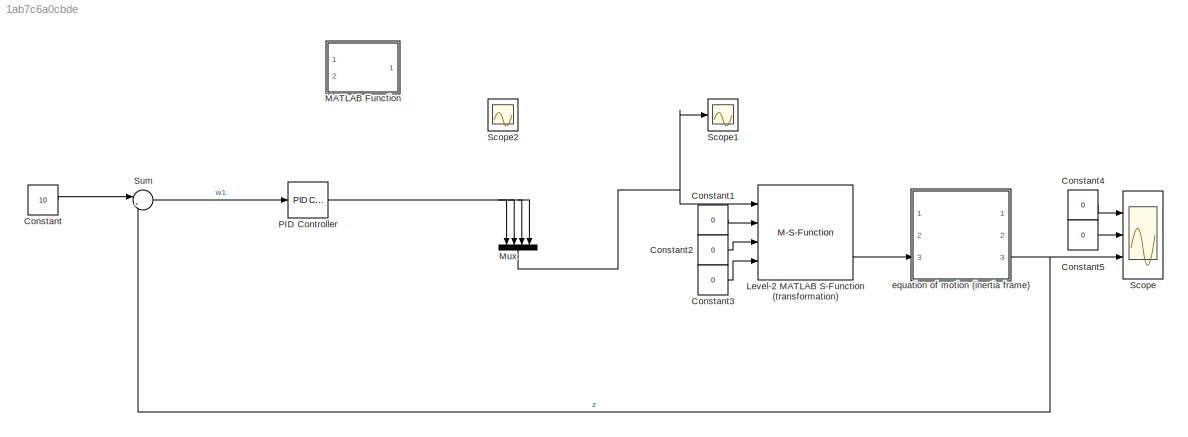
MODEL slx_1ab7c6a0cbde
KIND model
CONFIG AbsTol = auto
CONFIG EnableMultiTasking = on
CONFIG FixedStep = 0.01
CONFIG MaxStep = 0.01
CONFIG MinStep = auto
CONFIG RelTol = 1e-4
CONFIG SampleTimeConstraint = Unconstrained
CONFIG SolverName = ode4
CONFIG StartTime = 0.0
CONFIG StopTime = 100
BLOCK [Constant] Constant
  Value = 10
BLOCK [Constant] Constant1
  Value = 0
BLOCK [Constant] Constant2
  Value = 0
BLOCK [Constant] Constant3
  Value = 0
BLOCK [Constant] Constant4
  Value = 0
BLOCK [Constant] Constant5
  Value = 0
BLOCK [M-S-Function] Level-2 MATLAB S-Function (transformation)
  FunctionName = newton2nd
  Ports = [4, 3]
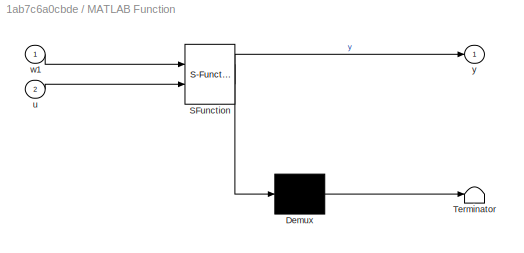
BLOCK [SubSystem] MATLAB Function
  Commented = on
  ErrorFcn = Stateflow.Translate.translate
  PermitHierarchicalResolution = ExplicitOnly
  Ports = [2, 1]
  RequestExecContextInheritance = off
  SFBlockType = MATLAB Function
  TreatAsAtomicUnit = on
BLOCK [Demux] MATLAB Function/ Demux 
  Outputs = 1
  Ports = [1, 1]
BLOCK [S-Function] MATLAB Function/ SFunction 
  EnableBusSupport = on
  FunctionName = sf_sfun
  Parameters = kf
  PortCounts = [2 2]
  Ports = [2, 2]
  SFcnIsStateOwnerBlock = off
  SFunctionDeploymentMode = off
  Tag = Stateflow S-Function 2
BLOCK [Terminator] MATLAB Function/ Terminator 
BLOCK [Inport] MATLAB Function/u
  Port = 2
BLOCK [Inport] MATLAB Function/w1
BLOCK [Outport] MATLAB Function/y
BLOCK [Mux] Mux
  DisplayOption = bar
  NameLocation = left
  Ports = [4, 1]
BLOCK [Reference] PID Controller  REF=pid_lib/PID Controller
  Ports = [1, 1]
  SourceBlock = pid_lib/PID Controller
  SourceProductBaseCode = SL
  SourceType = PID 1dof
BLOCK [Scope] Scope
  Floating = off
  NumInputPorts = 3
  Ports = [3]
  ScopeSpecificationString = Simulink.scopes.TimeScopeBlockCfg('CurrentConfiguration', extmgr.ConfigurationSet(extmgr.Configuration('Core','General UI',true),extmgr.Configuration('Core','Source UI',true),extmgr.Configuration('Sources','WiredSimulink',true,'DataLoggingVariableName','ScopeData1'),extmgr.Configuration('Visuals','Time Domain',true,'SerializedDisplays',{struct('MinYLimReal','-1.00000','MaxYLimReal','1.00000','YLab...<+2808ch>
BLOCK [Scope] Scope1
  Floating = off
  NumInputPorts = 1
  Ports = [1]
  ScopeSpecificationString = Simulink.scopes.TimeScopeBlockCfg('CurrentConfiguration', extmgr.ConfigurationSet(extmgr.Configuration('Core','General UI',true),extmgr.Configuration('Core','Source UI',true),extmgr.Configuration('Sources','WiredSimulink',true),extmgr.Configuration('Visuals','Time Domain',true,'SerializedDisplays',{struct('MinYLimReal','-95.7359','MaxYLimReal','457.28433','YLabelReal','','MinYLimMag','0.00000','Ma...<+13014ch>
BLOCK [Scope] Scope2
  Floating = off
  NumInputPorts = 1
  Ports = [1]
  ScopeSpecificationString = Simulink.scopes.TimeScopeBlockCfg('CurrentConfiguration', extmgr.ConfigurationSet(extmgr.Configuration('Core','General UI',true),extmgr.Configuration('Core','Source UI',true),extmgr.Configuration('Sources','WiredSimulink',true,'DataLoggingVariableName','ScopeData3'),extmgr.Configuration('Visuals','Time Domain',true,'SerializedDisplays',{struct('MinYLimReal','-1.00000','MaxYLimReal','1.00000','YLab...<+1436ch>
BLOCK [Sum] Sum
  Inputs = |+-
  Ports = [2, 1]
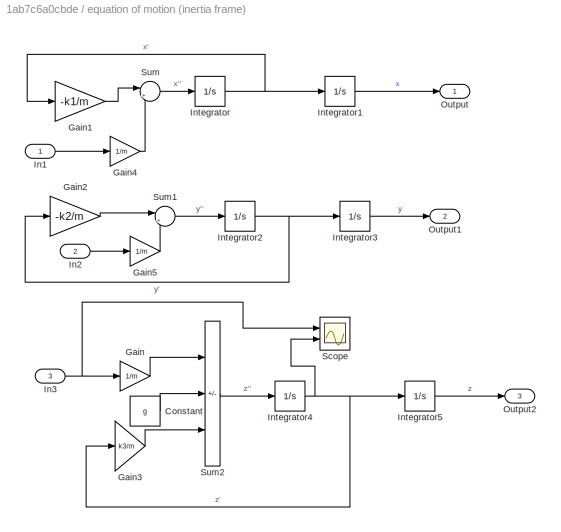
BLOCK [SubSystem] equation of motion (inertia frame)
  Ports = [3, 3]
  RequestExecContextInheritance = off
BLOCK [Constant] equation of motion (inertia frame)/Constant
  Value = g
BLOCK [Gain] equation of motion (inertia frame)/Gain
  Gain = 1/m
BLOCK [Gain] equation of motion (inertia frame)/Gain1
  Gain = -k1/m
BLOCK [Gain] equation of motion (inertia frame)/Gain2
  Gain = -k2/m
BLOCK [Gain] equation of motion (inertia frame)/Gain3
  Gain = k3/m
BLOCK [Gain] equation of motion (inertia frame)/Gain4
  Gain = 1/m
BLOCK [Gain] equation of motion (inertia frame)/Gain5
  Gain = 1/m
BLOCK [Inport] equation of motion (inertia frame)/In1
BLOCK [Inport] equation of motion (inertia frame)/In2
  Port = 2
BLOCK [Inport] equation of motion (inertia frame)/In3
  Port = 3
BLOCK [Integrator] equation of motion (inertia frame)/Integrator
  Ports = [1, 1]
BLOCK [Integrator] equation of motion (inertia frame)/Integrator1
  Ports = [1, 1]
BLOCK [Integrator] equation of motion (inertia frame)/Integrator2
  Ports = [1, 1]
BLOCK [Integrator] equation of motion (inertia frame)/Integrator3
  Ports = [1, 1]
BLOCK [Integrator] equation of motion (inertia frame)/Integrator4
  Ports = [1, 1]
BLOCK [Integrator] equation of motion (inertia frame)/Integrator5
  Ports = [1, 1]
BLOCK [Outport] equation of motion (inertia frame)/Output
BLOCK [Outport] equation of motion (inertia frame)/Output1
  Port = 2
BLOCK [Outport] equation of motion (inertia frame)/Output2
  Port = 3
BLOCK [Scope] equation of motion (inertia frame)/Scope
  Floating = off
  NumInputPorts = 2
  Ports = [2]
  ScopeSpecificationString = Simulink.scopes.TimeScopeBlockCfg('CurrentConfiguration', extmgr.ConfigurationSet(extmgr.Configuration('Core','General UI',true),extmgr.Configuration('Core','Source UI',true),extmgr.Configuration('Sources','WiredSimulink',true,'DataLoggingVariableName','ScopeData2'),extmgr.Configuration('Visuals','Time Domain',true,'SerializedDisplays',{struct('MinYLimReal','-340.5722','MaxYLimReal','1447.396','YL...<+2021ch>
BLOCK [Sum] equation of motion (inertia frame)/Sum
  Inputs = |++
  Ports = [2, 1]
BLOCK [Sum] equation of motion (inertia frame)/Sum1
  Inputs = |++
  Ports = [2, 1]
BLOCK [Sum] equation of motion (inertia frame)/Sum2
  IconShape = rectangular
  Inputs = |+--
  Ports = [3, 1]
LINE Constant1:1 -> Level-2 MATLAB S-Function (transformation):2
LINE Constant2:1 -> Level-2 MATLAB S-Function (transformation):3
LINE Constant3:1 -> Level-2 MATLAB S-Function (transformation):4
LINE Constant4:1 -> Scope:1
LINE Constant5:1 -> Scope:2
LINE Constant:1 -> Sum:1
LINE Level-2 MATLAB S-Function (transformation):3 -> equation of motion (inertia frame):3
NET Mux:1 -> Level-2 MATLAB S-Function (transformation):1, Scope1:1
NET PID Controller:1 -> Mux:1, Mux:2, Mux:3, Mux:4
LINE Sum:1 -> PID Controller:1
LINE equation of motion (inertia frame)/Constant:1 -> equation of motion (inertia frame)/Sum2:2
LINE equation of motion (inertia frame)/Gain1:1 -> equation of motion (inertia frame)/Sum:1
LINE equation of motion (inertia frame)/Gain2:1 -> equation of motion (inertia frame)/Sum1:1
LINE equation of motion (inertia frame)/Gain3:1 -> equation of motion (inertia frame)/Sum2:3
LINE equation of motion (inertia frame)/Gain4:1 -> equation of motion (inertia frame)/Sum:2
LINE equation of motion (inertia frame)/Gain5:1 -> equation of motion (inertia frame)/Sum1:2
LINE equation of motion (inertia frame)/Gain:1 -> equation of motion (inertia frame)/Sum2:1
LINE equation of motion (inertia frame)/In1:1 -> equation of motion (inertia frame)/Gain4:1
LINE equation of motion (inertia frame)/In2:1 -> equation of motion (inertia frame)/Gain5:1
NET equation of motion (inertia frame)/In3:1 -> equation of motion (inertia frame)/Gain:1, equation of motion (inertia frame)/Scope:1
LINE equation of motion (inertia frame)/Integrator1:1 -> equation of motion (inertia frame)/Output:1
NET equation of motion (inertia frame)/Integrator2:1 -> equation of motion (inertia frame)/Gain2:1, equation of motion (inertia frame)/Integrator3:1
LINE equation of motion (inertia frame)/Integrator3:1 -> equation of motion (inertia frame)/Output1:1
NET equation of motion (inertia frame)/Integrator4:1 -> equation of motion (inertia frame)/Gain3:1, equation of motion (inertia frame)/Integrator5:1, equation of motion (inertia frame)/Scope:2
LINE equation of motion (inertia frame)/Integrator5:1 -> equation of motion (inertia frame)/Output2:1
NET equation of motion (inertia frame)/Integrator:1 -> equation of motion (inertia frame)/Gain1:1, equation of motion (inertia frame)/Integrator1:1
LINE equation of motion (inertia frame)/Sum1:1 -> equation of motion (inertia frame)/Integrator2:1
LINE equation of motion (inertia frame)/Sum2:1 -> equation of motion (inertia frame)/Integrator4:1
LINE equation of motion (inertia frame)/Sum:1 -> equation of motion (inertia frame)/Integrator:1
NET equation of motion (inertia frame):3 -> Scope:3, Sum:2
note: NET lines group one-source signal fan-out (src -> all destinations, sorted); 1:1 wires keep LINE
CHART MATLAB Function states=1 transitions=1
  STATE_LABEL 'eML_blk_kernel()'
  STATE_LABEL 'SCRIPT:\nfunction y = fcn(w1, u,kf)\n\ny = u;\n'
CHART  states=0 transitions=0
